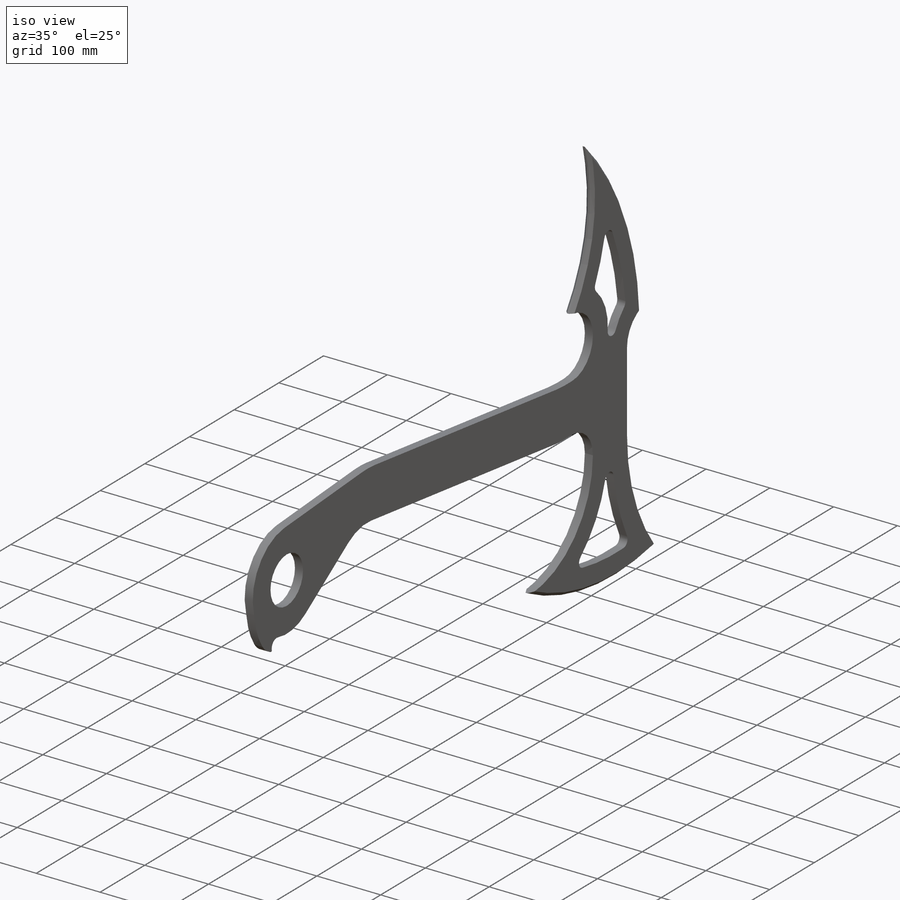
[diagram: iso view]
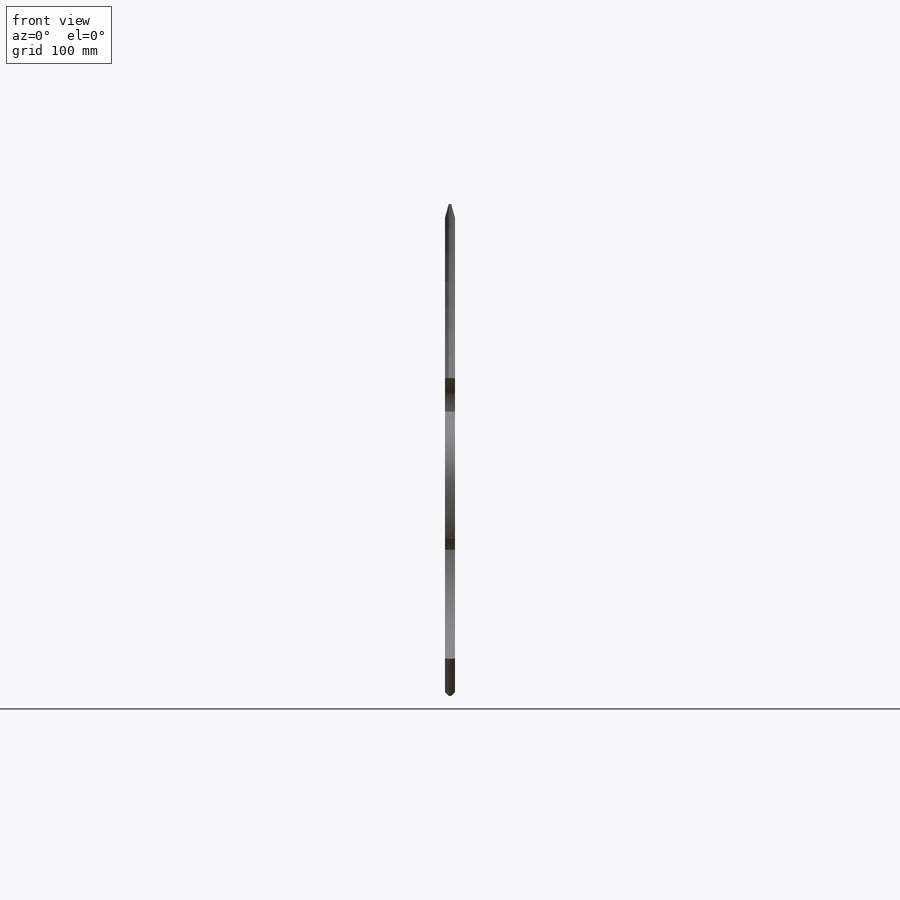
[diagram: front view]
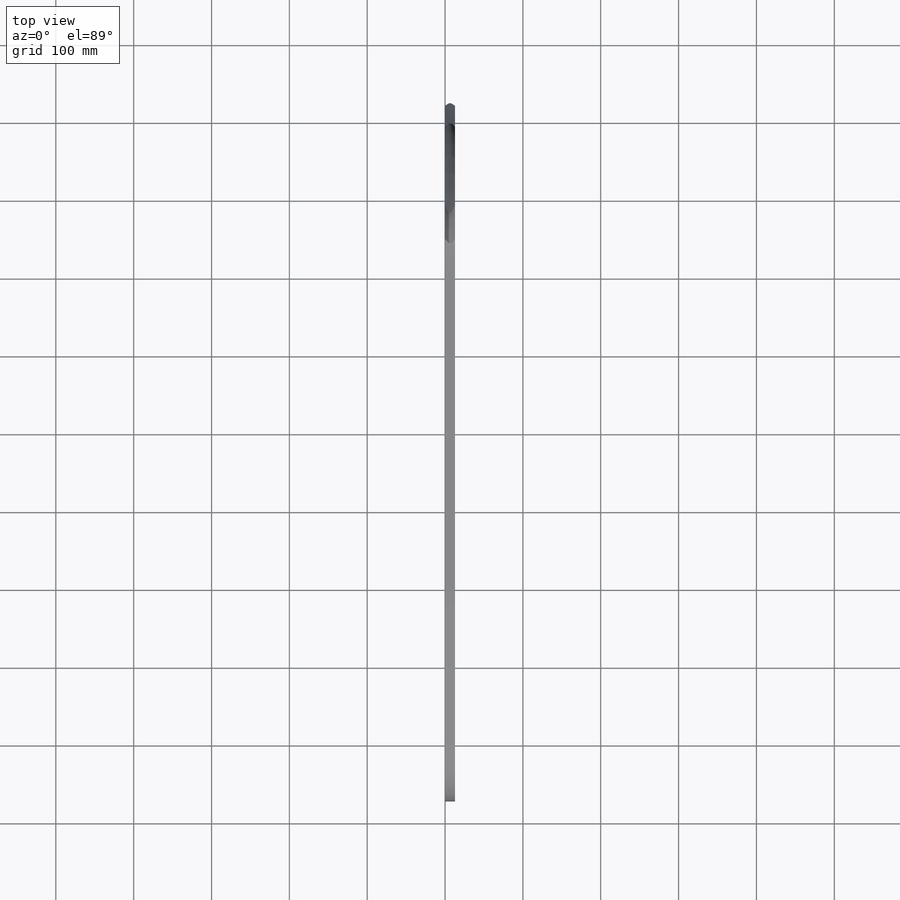
[diagram: top view]
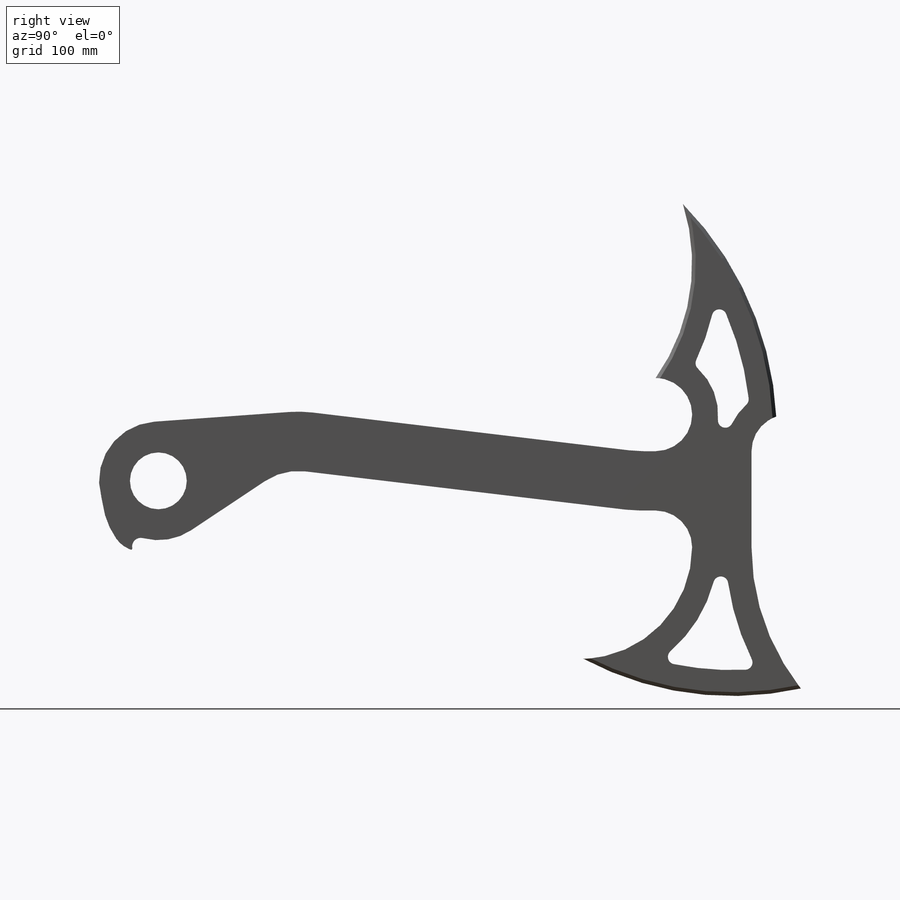
[diagram: right view]
SOLIDWORKS PART (.sldprt)
format: sldprt  version: not decoded by parser v0  size: 735,744 bytes
history: native  units: mm
features: sketch x11, extrude x7, fillet x5, cut_extrude x4, chamfer x2, material x1 (+13 scaffold rows collapsed)
feature tree (43):
  scaffold x13  (default folders/planes/origin — collapsed)
  material  "Plain Carbon Steel"
  sketch  "Sketch1"  dims[c1.D1=~50.527315mm c1.D2=152.4mm c1.D3=73.025mm c1.D5=279.4mm c1.D6=127.0mm c2.D5=152.4mm c2.D1=762.0mm c2.D4=76.2mm c3.D5=~124.22063mm c3.D7=609.6mm c3.D6=76.2mm c4.D7=609.6mm]
  extrude  "Boss-Extrude1"  Depth=12.7mm
  sketch  "Sketch2"  dims[c1.D10=228.6mm c1.D8=203.2mm c1.D12=~1525.903811mm c1.D2=~596.093142mm c1.D1=304.8mm c2.D2=50.8mm c2.D3=15.875mm c2.D4=406.4mm c2.D5=203.2mm c2.D6=25.4mm c2.D7=50.8mm c2.D8=177.8mm c2.D9=152.4mm c2.D11=~180.240701mm c2.D12=177.8mm c3.D8=177.8mm c3.D6=177.8mm c3.D11=76.2mm c3.D3=50.8mm c3.D12=~118.52552mm c4.D3=~297.965789mm c4.D2=50.8mm c5.D3=279.4mm c5.D4=203.2mm c5.D12=31.75mm]
  extrude  "Boss-Extrude2"  Depth=12.7mm
  fillet  "Fillet2"  Radius=50.8mm
  sketch  "Sketch5"  dims[D2=~32.766343mm D1=19.05mm]
  cut_extrude  "Cut-Extrude3"  [1 undecoded]
  sketch  "Sketch6"  dims[c1.D1=203.2mm c1.D2=~33.691292mm c2.D1=~25.912297mm c2.D2=~28.42966mm c3.D1=~139.228672mm c3.D2=6.35mm c3.D3=6.35mm c4.D1=6.35mm c4.D2=6.35mm]
  extrude  "Boss-Extrude3"  [1 undecoded]
  sketch  "Sketch9"  dims[D1=9.525mm D3=4.7625mm D2=0.0mm]
  extrude  "Boss-Extrude4"  [1 undecoded]
  fillet  "Fillet3"  Radius=152.4mm
  sketch  "Sketch12"  dims[c1.D1=~21.556501mm c1.D3=~96.089269mm c1.D4=101.6mm c2.D1=22.225mm c2.D2=~83.450986mm c3.D2=15.0deg c3.D3=95.25mm c4.D3=15.0deg c4.D5=95.25mm]
  extrude  "Boss-Extrude7"  [1 undecoded]
  fillet  "Fillet7"  Radius=1.5875mm
  fillet  "Fillet8"  Radius=38.1mm
  sketch  "Sketch15"  dims[c1.D1=~1470.384449mm c1.D2=~41.521753mm c1.D4=~66.701852mm c1.D5=254.0mm c1.D6=419.1mm c2.D1=317.5mm c2.D2=44.45mm c2.D3=31.75mm c2.D4=76.2mm]
  extrude  "Boss-Extrude10"  [1 undecoded]
  sketch  "Sketch16"  dims[D2=9.525mm D1=33.3375mm]
  cut_extrude  "Cut-Extrude4"  [1 undecoded]
  chamfer  "Chamfer3"  Distance=4.7625mm Angle=45deg
  sketch  "Sketch17"  dims[c1.D1=~88.312124mm c1.D2=~169.413619mm c2.D1=~197.285204mm]
  cut_extrude  "Cut-Extrude5"  [1 undecoded]
  sketch  "Sketch20"  dims[c1.D1=~324.533023mm c1.D2=~202.106793mm c1.D3=406.4mm c2.D1=63.5mm c2.D2=139.7mm c2.D4=203.2mm c2.D5=~123.273314mm c3.D4=228.6mm c3.D5=190.5mm]
  extrude  "Boss-Extrude12"  [1 undecoded]
  sketch  "Sketch21"  dims[D2=13.9679mm D1=33.3375mm]
  cut_extrude  "Cut-Extrude7"  [1 undecoded]
  fillet  "Fillet9"  Radius=9.525mm
  chamfer  "Chamfer5"  Distance=4.7625mm Angle=45deg
decode coverage: 20 of 29 modeling features carry decoded parameters
note: ~ marks probable driven/reference dimensions
note: 9 parameter values undecoded
summary: no parameter record found for 9 features
note: suppression state not decoded; provenance and decode notes live in map.json
